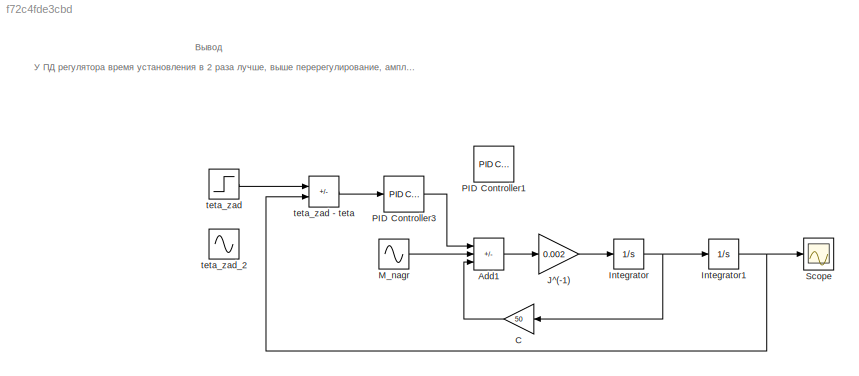
MODEL slx_f72c4fde3cbd
KIND model
CONFIG AbsTol = auto
CONFIG EnableMultiTasking = off
CONFIG FixedStep = auto
CONFIG MaxStep = auto
CONFIG MinStep = auto
CONFIG RelTol = 1e-3
CONFIG SampleTimeConstraint = Unconstrained
CONFIG SolverName = VariableStepAuto
CONFIG StartTime = 0.0
CONFIG StopTime = 200.0
BLOCK [Sum] Add1
  IconShape = rectangular
  Inputs = +--
BLOCK [Gain] C
  Gain = 50
  NameLocation = top
BLOCK [Integrator] Integrator
BLOCK [Integrator] Integrator1
BLOCK [Gain] J^(-1)
  Gain = 0.002
BLOCK [Sin] M_nagr
  Amplitude = 100
  Frequency = 0.5
  SampleTime = 0
BLOCK [Reference] PID Controller1  REF=slpidlib/PID Controller
  LibrarySourceBlock = simulink/Continuous/PID Controller
  SourceBlock = slpidlib/PID Controller
  SourceType = PID 1dof
BLOCK [Reference] PID Controller3  REF=slpidlib/PID Controller
  LibrarySourceBlock = simulink/Continuous/PID Controller
  SourceBlock = slpidlib/PID Controller
  SourceType = PID 1dof
BLOCK [Scope] Scope
  Floating = off
  NumInputPorts = 1
  ScopeSpecificationString = Simulink.scopes.TimeScopeBlockCfg('CurrentConfiguration', extmgr.ConfigurationSet(extmgr.Configuration('Core','General UI',true),extmgr.Configuration('Core','Source UI',true),extmgr.Configuration('Sources','WiredSimulink',true),extmgr.Configuration('Visuals','Time Domain',true,'SerializedDisplays',{struct('MinYLimReal','-4.21442','MaxYLimReal','37.64795','YLabelReal','','MinYLimMag','0.00000','Max...<+1778ch>
BLOCK [Step] teta_zad
  After = 30
  SampleTime = 0
BLOCK [Sum] teta_zad - teta
  IconShape = rectangular
  Inputs = +-
BLOCK [Sin] teta_zad_2
  Amplitude = 10
  Bias = 15
  Frequency = 0.2
  SampleTime = 0
ANNOTATION (root): У ПД регулятора время установления в 2 раза лучше, выше перерегулирование, амплитуда колебаний +- одинакова
ANNOTATION (root): Вывод
LINE Add1:1 -> J^(-1):1
LINE C:1 -> Add1:3
NET Integrator1:1 -> Scope:1, teta_zad - teta:2
NET Integrator:1 -> C:1, Integrator1:1
LINE J^(-1):1 -> Integrator:1
LINE M_nagr:1 -> Add1:2
LINE PID Controller3:1 -> Add1:1
LINE teta_zad - teta:1 -> PID Controller3:1
LINE teta_zad:1 -> teta_zad - teta:1
note: NET lines group one-source signal fan-out (src -> all destinations, sorted); 1:1 wires keep LINE
